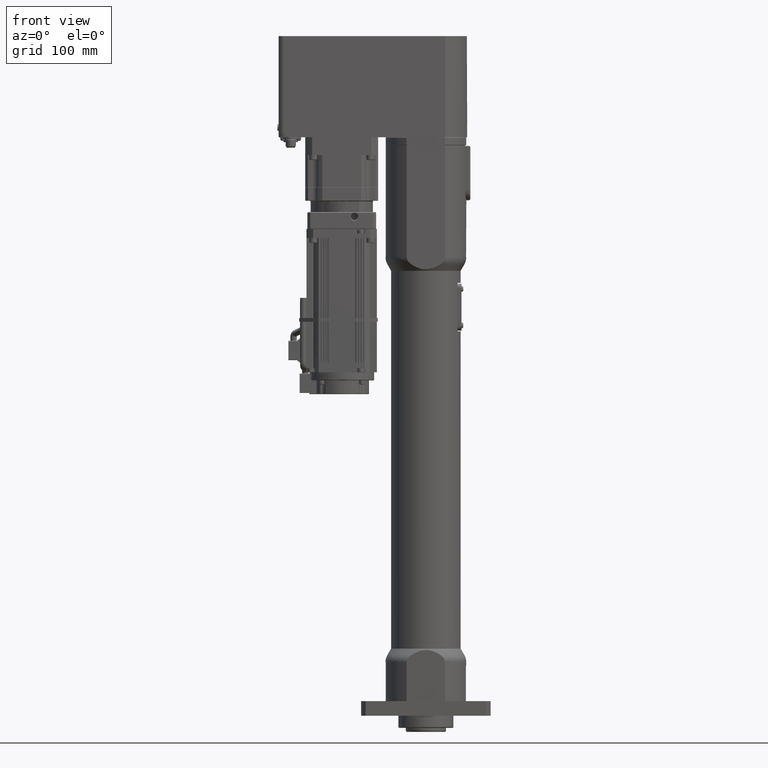
[diagram: clean part render]
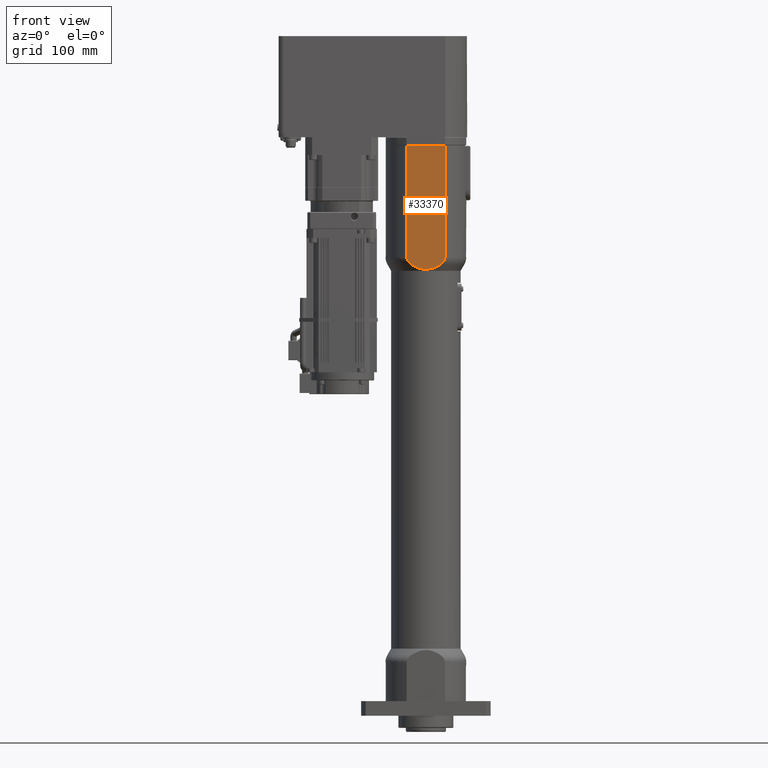
[diagram: same view with one face highlighted and labeled with its STEP entity id]
A machine part, front view. The second image highlights one B-rep face of the part: STEP entity #33370.
In plain terms, the highlighted planar face has unit normal (0, 1, -0).
Its self-contained STEP definition (entity closure, byte-faithful):
#197=(
BOUNDED_CURVE()
B_SPLINE_CURVE(2,(#54215,#54216,#54217),.UNSPECIFIED.,.F.,.F.)
B_SPLINE_CURVE_WITH_KNOTS((3,3),(0.,3.66773939196049),.UNSPECIFIED.)
CURVE()
GEOMETRIC_REPRESENTATION_ITEM()
RATIONAL_B_SPLINE_CURVE((1.,1.07546609262929,1.))
REPRESENTATION_ITEM('')
);
#1267=PLANE('',#35988);
#1756=B_SPLINE_CURVE_WITH_KNOTS('',3,(#54200,#54201,#54202,#54203,#54204,
#54205,#54206,#54207,#54208,#54209,#54210,#54211,#54212,#54213),
 .UNSPECIFIED.,.F.,.F.,(4,2,2,2,2,2,4),(7.45745620804549,7.64599320848023,
7.91508123407937,8.10491084271875,8.29474045135813,8.45672411882078,8.61870778628343),
 .UNSPECIFIED.);
#1757=B_SPLINE_CURVE_WITH_KNOTS('',3,(#54218,#54219,#54220,#54221,#54222,
#54223,#54224,#54225,#54226,#54227,#54228,#54229,#54230,#54231),
 .UNSPECIFIED.,.F.,.F.,(4,2,2,2,2,2,4),(2.87290259542781,3.03488626289046,
3.19686993035311,3.38669953899249,3.57652914763187,3.84561717323101,4.03415417366575),
 .UNSPECIFIED.);
#2988=FACE_OUTER_BOUND('',#4871,.T.);
#4871=EDGE_LOOP('',(#26064,#26065,#26066,#26067,#26068,#26069,#26070,#26071));
#9203=LINE('',#53842,#11899);
#9206=LINE('',#53854,#11902);
#9242=LINE('',#54074,#11938);
#9252=LINE('',#54232,#11948);
#9253=LINE('',#54233,#11949);
#11899=VECTOR('',#42851,10.);
#11902=VECTOR('',#42862,10.);
#11938=VECTOR('',#42952,10.);
#11948=VECTOR('',#42972,10.);
#11949=VECTOR('',#42973,10.);
#14626=VERTEX_POINT('',#53838);
#14628=VERTEX_POINT('',#53841);
#14631=VERTEX_POINT('',#53848);
#14633=VERTEX_POINT('',#53852);
#14672=VERTEX_POINT('',#54073);
#14689=VERTEX_POINT('',#54198);
#14690=VERTEX_POINT('',#54199);
#14691=VERTEX_POINT('',#54214);
#18641=EDGE_CURVE('',#14626,#14628,#9203,.T.);
#18647=EDGE_CURVE('',#14633,#14631,#9206,.T.);
#18704=EDGE_CURVE('',#14628,#14672,#9242,.T.);
#18724=EDGE_CURVE('',#14689,#14690,#1756,.T.);
#18725=EDGE_CURVE('',#14691,#14689,#197,.T.);
#18726=EDGE_CURVE('',#14672,#14691,#1757,.T.);
#18727=EDGE_CURVE('',#14626,#14631,#9252,.T.);
#18728=EDGE_CURVE('',#14690,#14633,#9253,.T.);
#26064=ORIENTED_EDGE('',*,*,#18724,.F.);
#26065=ORIENTED_EDGE('',*,*,#18725,.F.);
#26066=ORIENTED_EDGE('',*,*,#18726,.F.);
#26067=ORIENTED_EDGE('',*,*,#18704,.F.);
#26068=ORIENTED_EDGE('',*,*,#18641,.F.);
#26069=ORIENTED_EDGE('',*,*,#18727,.T.);
#26070=ORIENTED_EDGE('',*,*,#18647,.F.);
#26071=ORIENTED_EDGE('',*,*,#18728,.F.);
#33370=ADVANCED_FACE('',(#2988),#1267,.F.);
#35988=AXIS2_PLACEMENT_3D('',#54197,#42970,#42971);
#42851=DIRECTION('',(1.,-1.2929972066246E-13,1.6674103488941E-13));
#42862=DIRECTION('',(1.,-1.2929972066246E-13,1.6674103488941E-13));
#42952=DIRECTION('',(1.66741034889409E-13,-7.79443320540401E-15,-1.));
#42970=DIRECTION('center_axis',(1.29299720662461E-13,1.,-7.79443320538245E-15));
#42971=DIRECTION('ref_axis',(-1.,1.2929972066246E-13,-1.6674103488941E-13));
#42972=DIRECTION('',(-1.,1.70217011947342E-13,-1.6751526861513E-13));
#42973=DIRECTION('',(-1.66741034889409E-13,7.79443320540401E-15,1.));
#53838=CARTESIAN_POINT('',(22.6770809409084,-44.0000000000248,705.000000000025));
#53841=CARTESIAN_POINT('',(23.7486841740897,-44.00000000002,705.00000000006));
#53842=CARTESIAN_POINT('',(11.8743420870518,-44.0000000000185,705.000000000058));
#53848=CARTESIAN_POINT('',(-22.6770809408859,-44.0000000000171,705.000000000018));
#53852=CARTESIAN_POINT('',(-23.7486841740619,-44.0000000000139,705.000000000052));
#53854=CARTESIAN_POINT('',(11.8743420870518,-44.0000000000185,705.000000000058));
#54073=CARTESIAN_POINT('',(23.7486841741126,-44.0000000000211,567.483339501664));
#54074=CARTESIAN_POINT('',(23.7486841741155,-44.0000000000212,550.00000000006));
#54197=CARTESIAN_POINT('Origin',(23.7486841741709,-44.0000000000238,218.00000000006));
#54198=CARTESIAN_POINT('',(-17.4135144224245,-44.0000000000159,557.483339501657));
#54199=CARTESIAN_POINT('',(-23.748684174039,-44.000000000015,567.483339501656));
#54200=CARTESIAN_POINT('Ctrl Pts',(-17.4135144224244,-44.0000000000159,
557.483339501657));
#54201=CARTESIAN_POINT('Ctrl Pts',(-17.9691772267771,-44.0000000000158,
557.837507229095));
#54202=CARTESIAN_POINT('Ctrl Pts',(-18.5307143098801,-44.0000000000157,
558.236225585854));
#54203=CARTESIAN_POINT('Ctrl Pts',(-19.825766330951,-44.0000000000155,559.284785714144));
#54204=CARTESIAN_POINT('Ctrl Pts',(-20.5281513532071,-44.0000000000154,
559.972053709742));
#54205=CARTESIAN_POINT('Ctrl Pts',(-21.5116079174106,-44.0000000000153,
561.14375039871));
#54206=CARTESIAN_POINT('Ctrl Pts',(-21.9207607467875,-44.0000000000152,
561.705440237379));
#54207=CARTESIAN_POINT('Ctrl Pts',(-22.6269587478232,-44.0000000000151,
562.894015590616));
#54208=CARTESIAN_POINT('Ctrl Pts',(-22.9232767901416,-44.0000000000151,
563.521332982284));
#54209=CARTESIAN_POINT('Ctrl Pts',(-23.3273240655768,-44.000000000015,564.622240199945));
#54210=CARTESIAN_POINT('Ctrl Pts',(-23.4886062748671,-44.000000000015,565.192550791241));
#54211=CARTESIAN_POINT('Ctrl Pts',(-23.6994141423393,-44.000000000015,566.353104453726));
#54212=CARTESIAN_POINT('Ctrl Pts',(-23.7486841740389,-44.0000000000149,
566.943393943448));
#54213=CARTESIAN_POINT('Ctrl Pts',(-23.748684174039,-44.0000000000149,567.483339501656));
#54214=CARTESIAN_POINT('',(17.4135144225015,-44.0000000000204,557.483339501663));
#54215=CARTESIAN_POINT('Ctrl Pts',(17.4135144225015,-44.0000000000204,557.483339501663));
#54216=CARTESIAN_POINT('Ctrl Pts',(4.03460933661597E-11,-44.0000000000182,
546.384333447261));
#54217=CARTESIAN_POINT('Ctrl Pts',(-17.4135144224245,-44.0000000000159,
557.483339501657));
#54218=CARTESIAN_POINT('Ctrl Pts',(23.7486841741126,-44.0000000000211,567.483339501664));
#54219=CARTESIAN_POINT('Ctrl Pts',(23.7486841741127,-44.0000000000211,566.943393943455));
#54220=CARTESIAN_POINT('Ctrl Pts',(23.6994141424133,-44.0000000000211,566.353104453734));
#54221=CARTESIAN_POINT('Ctrl Pts',(23.4886062749415,-44.0000000000211,565.192550791249));
#54222=CARTESIAN_POINT('Ctrl Pts',(23.3273240656514,-44.0000000000211,564.622240199952));
#54223=CARTESIAN_POINT('Ctrl Pts',(22.9232767902166,-44.000000000021,563.521332982291));
#54224=CARTESIAN_POINT('Ctrl Pts',(22.6269587478983,-44.000000000021,562.894015590623));
#54225=CARTESIAN_POINT('Ctrl Pts',(21.9207607468631,-44.0000000000209,561.705440237387));
#54226=CARTESIAN_POINT('Ctrl Pts',(21.5116079174863,-44.0000000000209,561.143750398717));
#54227=CARTESIAN_POINT('Ctrl Pts',(20.5281513532833,-44.0000000000207,559.972053709749));
#54228=CARTESIAN_POINT('Ctrl Pts',(19.8257663310274,-44.0000000000207,559.284785714151));
#54229=CARTESIAN_POINT('Ctrl Pts',(18.5307143099568,-44.0000000000205,558.23622558586));
#54230=CARTESIAN_POINT('Ctrl Pts',(17.969177226854,-44.0000000000204,557.837507229101));
#54231=CARTESIAN_POINT('Ctrl Pts',(17.4135144225015,-44.0000000000203,557.483339501663));
#54232=CARTESIAN_POINT('',(6.52565791297333,-44.0000000000221,705.000000000023));
#54233=CARTESIAN_POINT('',(-23.7486841740361,-44.0000000000151,550.000000000052));